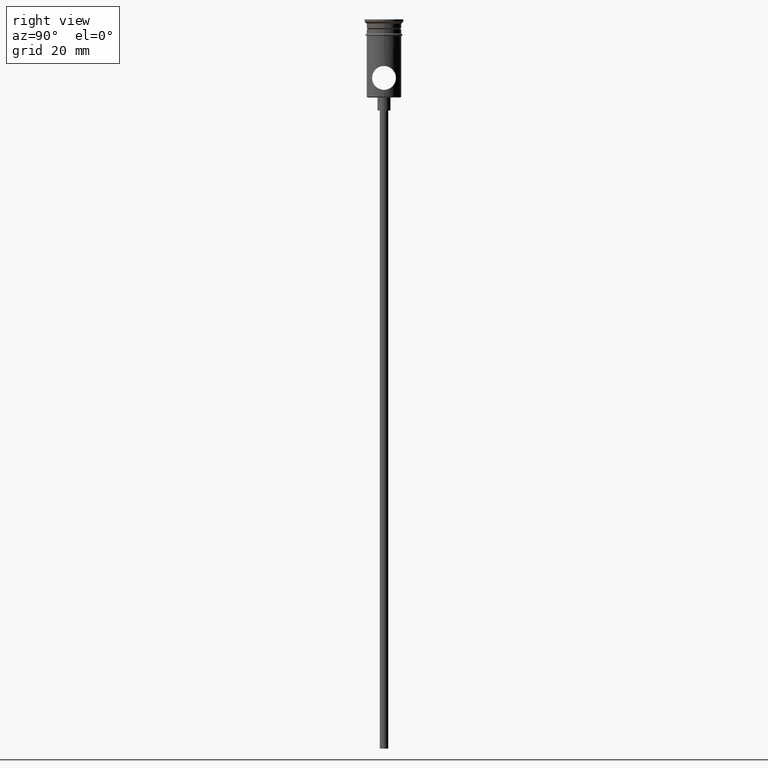
[diagram: clean part render]
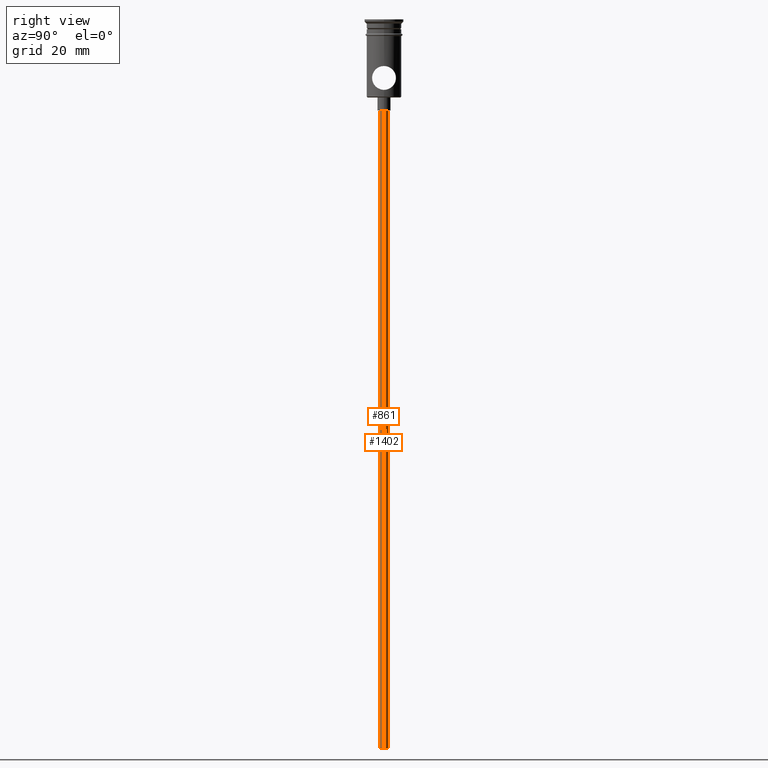
[diagram: same view with one multi-face feature highlighted, each face labeled with its STEP entity id]
A machine part, right view. The highlighted faces form ONE feature: a constant-radius fillet chain: 2 tangent blend faces with common blend radius 1 mm. The faces share edges in the B-rep.
Their STEP definitions:
[1] entity #1402 (Cylinder):
#50 = VECTOR ( 'NONE', #1398, 1000.000000000000000 ) ;
#72 = EDGE_CURVE ( 'NONE', #1363, #1256, #1253, .T. ) ;
#99 = EDGE_CURVE ( 'NONE', #1346, #1363, #321, .T. ) ;
#108 = DIRECTION ( 'NONE',  ( -0.000000000000000000, -0.000000000000000000, 1.000000000000000000 ) ) ;
#140 = FACE_OUTER_BOUND ( 'NONE', #1235, .T. ) ;
#175 = DIRECTION ( 'NONE',  ( -0.000000000000000000, -0.000000000000000000, 1.000000000000000000 ) ) ;
#193 = ORIENTED_EDGE ( 'NONE', *, *, #72, .F. ) ;
#321 = CIRCLE ( 'NONE', #865, 0.9999999999999997780 ) ;
#349 = DIRECTION ( 'NONE',  ( 0.000000000000000000, 0.000000000000000000, -1.000000000000000000 ) ) ;
#358 = CARTESIAN_POINT ( 'NONE',  ( -0.9999999999999997780, 1.224646799147352961E-16, -20.99999999999999645 ) ) ;
#386 = ORIENTED_EDGE ( 'NONE', *, *, #897, .T. ) ;
#448 = CARTESIAN_POINT ( 'NONE',  ( 0.000000000000000000, 0.000000000000000000, -20.99999999999999645 ) ) ;
#484 = CARTESIAN_POINT ( 'NONE',  ( 0.9999999999999997780, 0.000000000000000000, -167.9999999999999716 ) ) ;
#516 = CIRCLE ( 'NONE', #693, 0.9999999999999997780 ) ;
#541 = LINE ( 'NONE', #760, #50 ) ;
#627 = DIRECTION ( 'NONE',  ( -1.000000000000000000, 0.000000000000000000, 0.000000000000000000 ) ) ;
#643 = DIRECTION ( 'NONE',  ( 0.000000000000000000, 0.000000000000000000, -1.000000000000000000 ) ) ;
#664 = CARTESIAN_POINT ( 'NONE',  ( -0.9999999999999997780, 1.224646799147352961E-16, -167.9999999999999716 ) ) ;
#693 = AXIS2_PLACEMENT_3D ( 'NONE', #448, #643, #627 ) ;
#707 = ORIENTED_EDGE ( 'NONE', *, *, #999, .T. ) ;
#716 = CARTESIAN_POINT ( 'NONE',  ( 0.9999999999999997780, 0.000000000000000000, -167.9999999999999716 ) ) ;
#760 = CARTESIAN_POINT ( 'NONE',  ( -0.9999999999999997780, 1.224646799147352961E-16, -167.9999999999999716 ) ) ;
#865 = AXIS2_PLACEMENT_3D ( 'NONE', #1414, #349, #1208 ) ;
#885 = CYLINDRICAL_SURFACE ( 'NONE', #967, 0.9999999999999997780 ) ;
#897 = EDGE_CURVE ( 'NONE', #1357, #1256, #516, .T. ) ;
#967 = AXIS2_PLACEMENT_3D ( 'NONE', #1212, #108, #1190 ) ;
#974 = CARTESIAN_POINT ( 'NONE',  ( 0.9999999999999997780, 0.000000000000000000, -20.99999999999999645 ) ) ;
#999 = EDGE_CURVE ( 'NONE', #1346, #1357, #541, .T. ) ;
#1002 = VECTOR ( 'NONE', #175, 1000.000000000000000 ) ;
#1190 = DIRECTION ( 'NONE',  ( 1.000000000000000000, 0.000000000000000000, 0.000000000000000000 ) ) ;
#1208 = DIRECTION ( 'NONE',  ( -1.000000000000000000, 0.000000000000000000, 0.000000000000000000 ) ) ;
#1212 = CARTESIAN_POINT ( 'NONE',  ( 0.000000000000000000, 0.000000000000000000, -167.9999999999999716 ) ) ;
#1235 = EDGE_LOOP ( 'NONE', ( #1246, #707, #386, #193 ) ) ;
#1246 = ORIENTED_EDGE ( 'NONE', *, *, #99, .F. ) ;
#1253 = LINE ( 'NONE', #716, #1002 ) ;
#1256 = VERTEX_POINT ( 'NONE', #974 ) ;
#1346 = VERTEX_POINT ( 'NONE', #664 ) ;
#1357 = VERTEX_POINT ( 'NONE', #358 ) ;
#1363 = VERTEX_POINT ( 'NONE', #484 ) ;
#1398 = DIRECTION ( 'NONE',  ( -0.000000000000000000, -0.000000000000000000, 1.000000000000000000 ) ) ;
#1402 = ADVANCED_FACE ( 'NONE', ( #140 ), #885, .T. ) ;
#1414 = CARTESIAN_POINT ( 'NONE',  ( 0.000000000000000000, 0.000000000000000000, -167.9999999999999716 ) ) ;
[2] entity #861 (Cylinder):
#19 = AXIS2_PLACEMENT_3D ( 'NONE', #76, #635, #1297 ) ;
#26 = EDGE_CURVE ( 'NONE', #1256, #1357, #1255, .T. ) ;
#50 = VECTOR ( 'NONE', #1398, 1000.000000000000000 ) ;
#60 = ORIENTED_EDGE ( 'NONE', *, *, #344, .F. ) ;
#72 = EDGE_CURVE ( 'NONE', #1363, #1256, #1253, .T. ) ;
#76 = CARTESIAN_POINT ( 'NONE',  ( 0.000000000000000000, 0.000000000000000000, -167.9999999999999716 ) ) ;
#100 = CARTESIAN_POINT ( 'NONE',  ( 0.000000000000000000, 0.000000000000000000, -20.99999999999999645 ) ) ;
#175 = DIRECTION ( 'NONE',  ( -0.000000000000000000, -0.000000000000000000, 1.000000000000000000 ) ) ;
#243 = CARTESIAN_POINT ( 'NONE',  ( 0.000000000000000000, 0.000000000000000000, -167.9999999999999716 ) ) ;
#327 = DIRECTION ( 'NONE',  ( -1.000000000000000000, 0.000000000000000000, 0.000000000000000000 ) ) ;
#328 = CYLINDRICAL_SURFACE ( 'NONE', #19, 0.9999999999999997780 ) ;
#344 = EDGE_CURVE ( 'NONE', #1363, #1346, #735, .T. ) ;
#358 = CARTESIAN_POINT ( 'NONE',  ( -0.9999999999999997780, 1.224646799147352961E-16, -20.99999999999999645 ) ) ;
#373 = ORIENTED_EDGE ( 'NONE', *, *, #999, .F. ) ;
#484 = CARTESIAN_POINT ( 'NONE',  ( 0.9999999999999997780, 0.000000000000000000, -167.9999999999999716 ) ) ;
#503 = ORIENTED_EDGE ( 'NONE', *, *, #26, .T. ) ;
#528 = FACE_OUTER_BOUND ( 'NONE', #1365, .T. ) ;
#541 = LINE ( 'NONE', #760, #50 ) ;
#547 = DIRECTION ( 'NONE',  ( 0.000000000000000000, 0.000000000000000000, -1.000000000000000000 ) ) ;
#576 = DIRECTION ( 'NONE',  ( -1.000000000000000000, 0.000000000000000000, 0.000000000000000000 ) ) ;
#635 = DIRECTION ( 'NONE',  ( -0.000000000000000000, -0.000000000000000000, 1.000000000000000000 ) ) ;
#664 = CARTESIAN_POINT ( 'NONE',  ( -0.9999999999999997780, 1.224646799147352961E-16, -167.9999999999999716 ) ) ;
#716 = CARTESIAN_POINT ( 'NONE',  ( 0.9999999999999997780, 0.000000000000000000, -167.9999999999999716 ) ) ;
#735 = CIRCLE ( 'NONE', #1371, 0.9999999999999997780 ) ;
#736 = ORIENTED_EDGE ( 'NONE', *, *, #72, .T. ) ;
#760 = CARTESIAN_POINT ( 'NONE',  ( -0.9999999999999997780, 1.224646799147352961E-16, -167.9999999999999716 ) ) ;
#861 = ADVANCED_FACE ( 'NONE', ( #528 ), #328, .T. ) ;
#974 = CARTESIAN_POINT ( 'NONE',  ( 0.9999999999999997780, 0.000000000000000000, -20.99999999999999645 ) ) ;
#999 = EDGE_CURVE ( 'NONE', #1346, #1357, #541, .T. ) ;
#1002 = VECTOR ( 'NONE', #175, 1000.000000000000000 ) ;
#1026 = DIRECTION ( 'NONE',  ( 0.000000000000000000, 0.000000000000000000, -1.000000000000000000 ) ) ;
#1175 = AXIS2_PLACEMENT_3D ( 'NONE', #100, #547, #327 ) ;
#1253 = LINE ( 'NONE', #716, #1002 ) ;
#1255 = CIRCLE ( 'NONE', #1175, 0.9999999999999997780 ) ;
#1256 = VERTEX_POINT ( 'NONE', #974 ) ;
#1297 = DIRECTION ( 'NONE',  ( 1.000000000000000000, 0.000000000000000000, 0.000000000000000000 ) ) ;
#1346 = VERTEX_POINT ( 'NONE', #664 ) ;
#1357 = VERTEX_POINT ( 'NONE', #358 ) ;
#1363 = VERTEX_POINT ( 'NONE', #484 ) ;
#1365 = EDGE_LOOP ( 'NONE', ( #373, #60, #736, #503 ) ) ;
#1371 = AXIS2_PLACEMENT_3D ( 'NONE', #243, #1026, #576 ) ;
#1398 = DIRECTION ( 'NONE',  ( -0.000000000000000000, -0.000000000000000000, 1.000000000000000000 ) ) ;